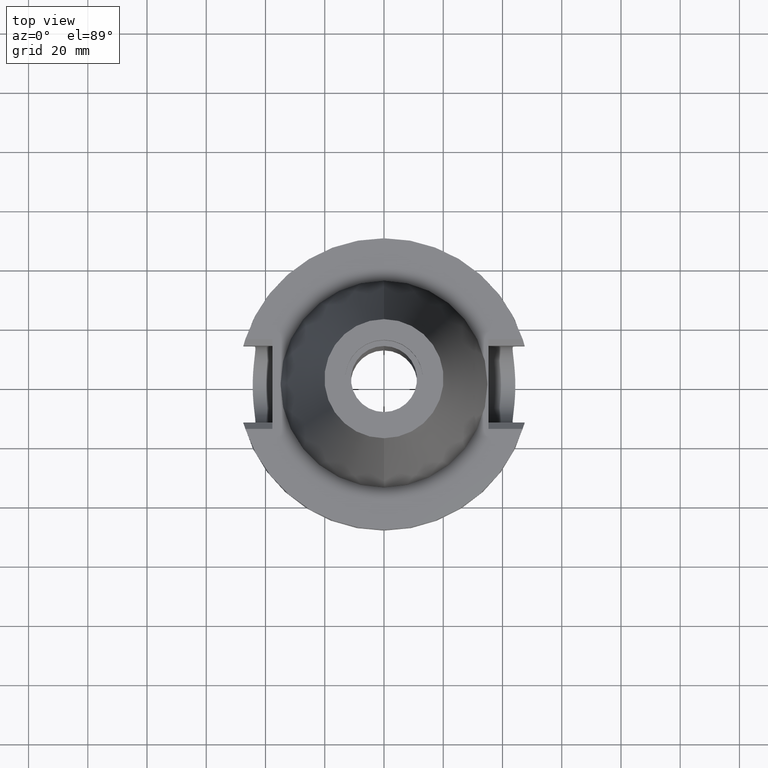
[diagram: clean part render]
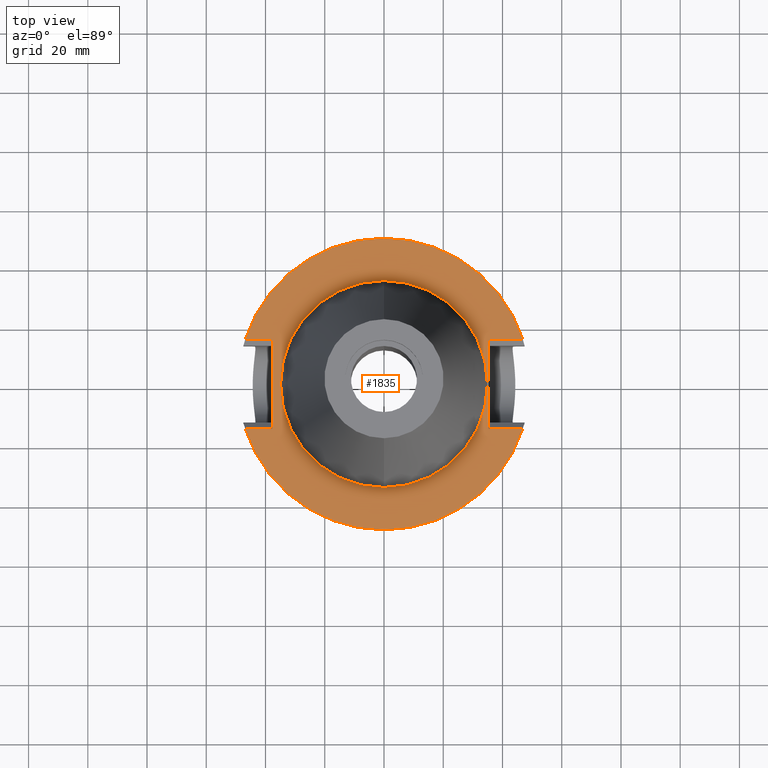
[diagram: same view with one face highlighted and labeled with its STEP entity id]
A machine part, top view. The second image highlights one B-rep face of the part: STEP entity #1835.
In plain terms, the highlighted planar face has unit normal (0, 0, -1).
Its self-contained STEP definition (entity closure, byte-faithful):
#94=DIRECTION('',(0.E0,-1.E0,0.E0));
#95=VECTOR('',#94,3.031E1);
#96=CARTESIAN_POINT('',(3.527E1,1.5155E1,-1.5E0));
#97=LINE('',#96,#95);
#101=DIRECTION('',(1.E0,0.E0,0.E0));
#102=VECTOR('',#101,1.155089417397E1);
#103=CARTESIAN_POINT('',(3.527E1,-1.5155E1,-1.5E0));
#104=LINE('',#103,#102);
#108=CARTESIAN_POINT('',(0.E0,2.594781638033E-14,-1.5E0));
#109=DIRECTION('',(0.E0,0.E0,-1.E0));
#110=DIRECTION('',(9.514024724200E-1,-3.079502159004E-1,0.E0));
#111=AXIS2_PLACEMENT_3D('',#108,#109,#110);
#116=CARTESIAN_POINT('',(0.E0,2.594781638033E-14,-1.5E0));
#117=DIRECTION('',(0.E0,0.E0,-1.E0));
#118=DIRECTION('',(0.E0,-1.E0,0.E0));
#119=AXIS2_PLACEMENT_3D('',#116,#117,#118);
#124=DIRECTION('',(0.E0,1.E0,0.E0));
#125=VECTOR('',#124,3.031E1);
#126=CARTESIAN_POINT('',(-3.768E1,-1.5155E1,-1.5E0));
#127=LINE('',#126,#125);
#131=DIRECTION('',(-1.E0,-1.204850662821E-14,0.E0));
#132=VECTOR('',#131,9.140894173969E0);
#133=CARTESIAN_POINT('',(-3.768E1,1.5155E1,-1.5E0));
#134=LINE('',#133,#132);
#138=CARTESIAN_POINT('',(0.E0,2.594781638033E-14,-1.5E0));
#139=DIRECTION('',(0.E0,0.E0,-1.E0));
#140=DIRECTION('',(-9.514024724200E-1,3.079502159004E-1,0.E0));
#141=AXIS2_PLACEMENT_3D('',#138,#139,#140);
#146=CARTESIAN_POINT('',(0.E0,2.594781638033E-14,-1.5E0));
#147=DIRECTION('',(0.E0,0.E0,-1.E0));
#148=DIRECTION('',(0.E0,1.E0,0.E0));
#149=AXIS2_PLACEMENT_3D('',#146,#147,#148);
#154=CARTESIAN_POINT('',(0.E0,2.594781638033E-14,-1.5E0));
#155=DIRECTION('',(0.E0,0.E0,1.E0));
#156=DIRECTION('',(0.E0,-1.E0,0.E0));
#157=AXIS2_PLACEMENT_3D('',#154,#155,#156);
#162=CARTESIAN_POINT('',(0.E0,2.594781638033E-14,-1.5E0));
#163=DIRECTION('',(0.E0,0.E0,1.E0));
#164=DIRECTION('',(0.E0,1.E0,0.E0));
#165=AXIS2_PLACEMENT_3D('',#162,#163,#164);
#221=DIRECTION('',(1.E0,0.E0,0.E0));
#222=VECTOR('',#221,1.155089417397E1);
#223=CARTESIAN_POINT('',(3.527E1,1.5155E1,-1.5E0));
#224=LINE('',#223,#222);
#715=DIRECTION('',(-1.E0,1.204850662821E-14,0.E0));
#716=VECTOR('',#715,9.140894173969E0);
#717=CARTESIAN_POINT('',(-3.768E1,-1.5155E1,-1.5E0));
#718=LINE('',#717,#716);
#1639=CARTESIAN_POINT('',(-3.768E1,-1.5155E1,-1.5E0));
#1640=CARTESIAN_POINT('',(-3.768E1,1.5155E1,-1.5E0));
#1641=VERTEX_POINT('',#1639);
#1642=VERTEX_POINT('',#1640);
#1649=CARTESIAN_POINT('',(3.527E1,1.5155E1,-1.5E0));
#1650=CARTESIAN_POINT('',(3.527E1,-1.5155E1,-1.5E0));
#1651=VERTEX_POINT('',#1649);
#1652=VERTEX_POINT('',#1650);
#1653=CARTESIAN_POINT('',(4.682089417397E1,-1.5155E1,-1.5E0));
#1654=VERTEX_POINT('',#1653);
#1655=CARTESIAN_POINT('',(0.E0,-4.92125E1,-1.5E0));
#1656=CARTESIAN_POINT('',(-4.682089417397E1,-1.5155E1,-1.5E0));
#1657=VERTEX_POINT('',#1655);
#1658=VERTEX_POINT('',#1656);
#1659=CARTESIAN_POINT('',(-4.682089417397E1,1.5155E1,-1.5E0));
#1660=VERTEX_POINT('',#1659);
#1661=CARTESIAN_POINT('',(-1.598721155460E-14,4.92125E1,-1.5E0));
#1662=CARTESIAN_POINT('',(4.682089417397E1,1.5155E1,-1.5E0));
#1663=VERTEX_POINT('',#1661);
#1664=VERTEX_POINT('',#1662);
#1665=CARTESIAN_POINT('',(0.E0,-3.4925E1,-1.5E0));
#1666=CARTESIAN_POINT('',(0.E0,3.4925E1,-1.5E0));
#1667=VERTEX_POINT('',#1665);
#1668=VERTEX_POINT('',#1666);
#1804=CARTESIAN_POINT('',(0.E0,1.206277097160E-14,-1.5E0));
#1805=DIRECTION('',(0.E0,0.E0,-1.E0));
#1806=DIRECTION('',(0.E0,-1.E0,0.E0));
#1807=AXIS2_PLACEMENT_3D('',#1804,#1805,#1806);
#1808=PLANE('',#1807);
#1810=ORIENTED_EDGE('',*,*,#1809,.T.);
#1812=ORIENTED_EDGE('',*,*,#1811,.T.);
#1814=ORIENTED_EDGE('',*,*,#1813,.T.);
#1816=ORIENTED_EDGE('',*,*,#1815,.T.);
#1818=ORIENTED_EDGE('',*,*,#1817,.F.);
#1820=ORIENTED_EDGE('',*,*,#1819,.T.);
#1822=ORIENTED_EDGE('',*,*,#1821,.T.);
#1824=ORIENTED_EDGE('',*,*,#1823,.T.);
#1826=ORIENTED_EDGE('',*,*,#1825,.T.);
#1828=ORIENTED_EDGE('',*,*,#1827,.F.);
#1829=EDGE_LOOP('',(#1810,#1812,#1814,#1816,#1818,#1820,#1822,#1824,#1826,
#1828));
#1830=FACE_OUTER_BOUND('',#1829,.F.);
#1831=ORIENTED_EDGE('',*,*,#1783,.T.);
#1832=ORIENTED_EDGE('',*,*,#1799,.T.);
#1833=EDGE_LOOP('',(#1831,#1832));
#1834=FACE_BOUND('',#1833,.F.);
#112=CIRCLE('',#111,4.92125E1);
#120=CIRCLE('',#119,4.92125E1);
#142=CIRCLE('',#141,4.92125E1);
#150=CIRCLE('',#149,4.92125E1);
#158=CIRCLE('',#157,3.4925E1);
#166=CIRCLE('',#165,3.4925E1);
#1783=EDGE_CURVE('',#1667,#1668,#158,.T.);
#1799=EDGE_CURVE('',#1668,#1667,#166,.T.);
#1809=EDGE_CURVE('',#1651,#1652,#97,.T.);
#1811=EDGE_CURVE('',#1652,#1654,#104,.T.);
#1813=EDGE_CURVE('',#1654,#1657,#112,.T.);
#1815=EDGE_CURVE('',#1657,#1658,#120,.T.);
#1817=EDGE_CURVE('',#1641,#1658,#718,.T.);
#1819=EDGE_CURVE('',#1641,#1642,#127,.T.);
#1821=EDGE_CURVE('',#1642,#1660,#134,.T.);
#1823=EDGE_CURVE('',#1660,#1663,#142,.T.);
#1825=EDGE_CURVE('',#1663,#1664,#150,.T.);
#1827=EDGE_CURVE('',#1651,#1664,#224,.T.);
#1835=ADVANCED_FACE('',(#1830,#1834),#1808,.F.);